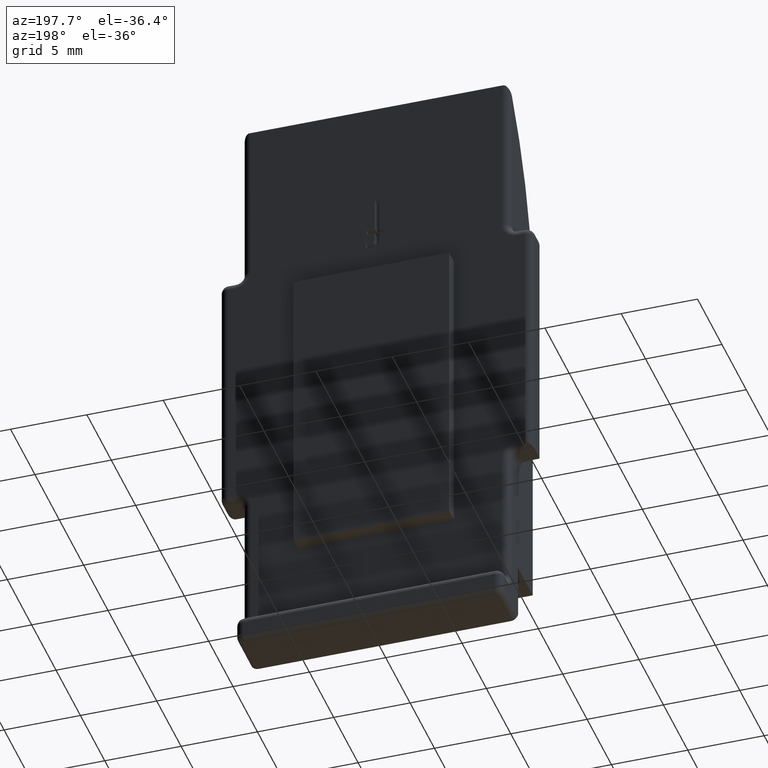
[diagram: clean part render]
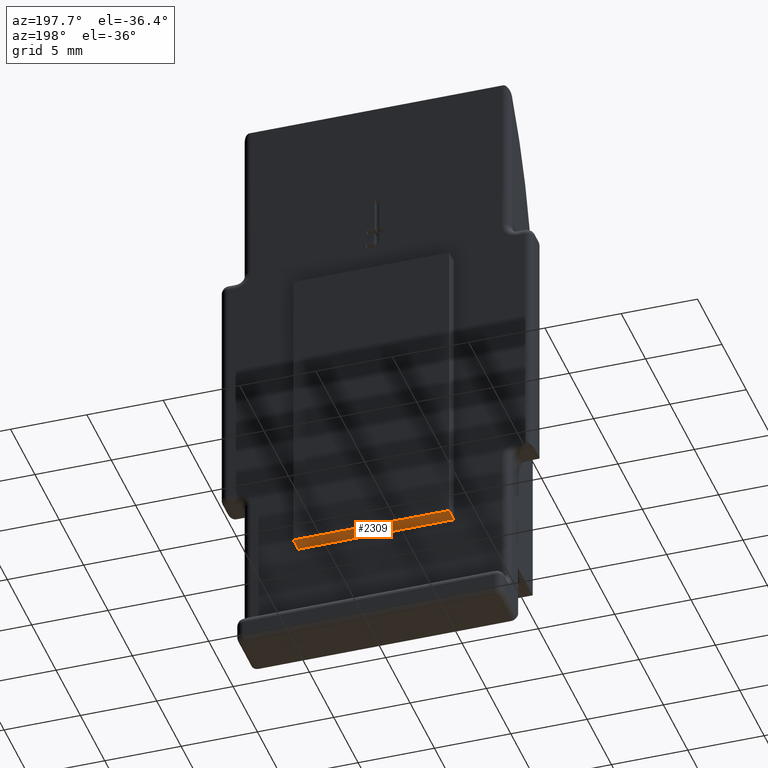
[diagram: same view with one face highlighted and labeled with its STEP entity id]
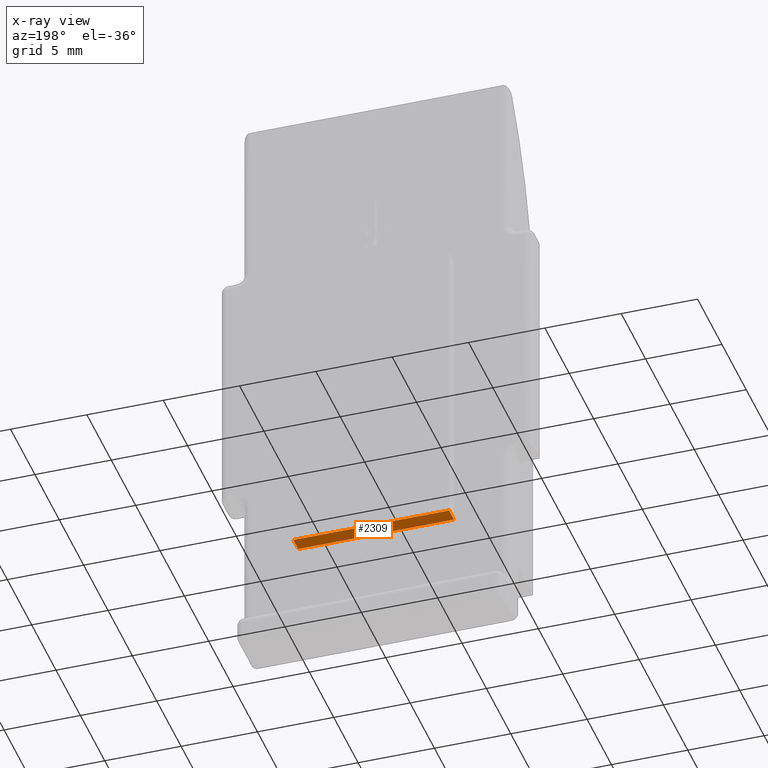
[diagram: x-ray of the same camera — body ghosted, the highlighted face saturated]
A machine part, auxiliary view. The second image highlights one B-rep face of the part: STEP entity #2309.
The next image is the same camera in x-ray: the body ghosted, the highlighted face saturated — about 0% of this face is hidden behind the body in this view.
In plain terms, the highlighted planar face has unit normal (0, 0, 1).
Its self-contained STEP definition (entity closure, byte-faithful):
#162 = ORIENTED_EDGE ( 'NONE', *, *, #1906, .F. ) ;
#225 = CARTESIAN_POINT ( 'NONE',  ( 0.0000000000000000000, 10.19999999999999900, 1.000000000000000000 ) ) ;
#245 = EDGE_CURVE ( 'NONE', #1359, #2426, #1503, .T. ) ;
#248 = CARTESIAN_POINT ( 'NONE',  ( 0.0000000000000000000, 10.19999999999999900, 1.000000000000000000 ) ) ;
#362 = VERTEX_POINT ( 'NONE', #248 ) ;
#424 = VECTOR ( 'NONE', #2853, 1000.000000000000000 ) ;
#456 = CARTESIAN_POINT ( 'NONE',  ( 0.0000000000000000000, 10.19999999999999900, 1.000000000000000000 ) ) ;
#459 = LINE ( 'NONE', #225, #424 ) ;
#482 = CARTESIAN_POINT ( 'NONE',  ( 0.0000000000000000000, 0.0000000000000000000, 1.000000000000000000 ) ) ;
#521 = DIRECTION ( 'NONE',  ( -0.0000000000000000000, -0.0000000000000000000, -1.000000000000000000 ) ) ;
#554 = FACE_OUTER_BOUND ( 'NONE', #1049, .T. ) ;
#571 = DIRECTION ( 'NONE',  ( -0.0000000000000000000, -0.0000000000000000000, -1.000000000000000000 ) ) ;
#769 = CARTESIAN_POINT ( 'NONE',  ( 0.0000000000000000000, 0.0000000000000000000, 0.0000000000000000000 ) ) ;
#808 = DIRECTION ( 'NONE',  ( -0.0000000000000000000, 0.0000000000000000000, -1.000000000000000000 ) ) ;
#899 = VERTEX_POINT ( 'NONE', #2080 ) ;
#1009 = DIRECTION ( 'NONE',  ( 1.000000000000000000, 0.0000000000000000000, -0.0000000000000000000 ) ) ;
#1015 = DIRECTION ( 'NONE',  ( 0.0000000000000000000, -1.000000000000000000, 0.0000000000000000000 ) ) ;
#1017 = AXIS2_PLACEMENT_3D ( 'NONE', #1783, #1009, #808 ) ;
#1019 = CARTESIAN_POINT ( 'NONE',  ( 0.0000000000000000000, 10.19999999999999900, 0.0000000000000000000 ) ) ;
#1030 = PLANE ( 'NONE',  #1017 ) ;
#1049 = EDGE_LOOP ( 'NONE', ( #2677, #162, #1113, #2200 ) ) ;
#1113 = ORIENTED_EDGE ( 'NONE', *, *, #2331, .F. ) ;
#1281 = VECTOR ( 'NONE', #521, 1000.000000000000000 ) ;
#1359 = VERTEX_POINT ( 'NONE', #1403 ) ;
#1370 = LINE ( 'NONE', #482, #1281 ) ;
#1378 = VECTOR ( 'NONE', #571, 1000.000000000000000 ) ;
#1383 = VECTOR ( 'NONE', #1015, 1000.000000000000000 ) ;
#1403 = CARTESIAN_POINT ( 'NONE',  ( 0.0000000000000000000, 10.19999999999999900, 0.0000000000000000000 ) ) ;
#1456 = LINE ( 'NONE', #456, #1378 ) ;
#1503 = LINE ( 'NONE', #1019, #1383 ) ;
#1783 = CARTESIAN_POINT ( 'NONE',  ( 0.0000000000000000000, 10.19999999999999900, 1.000000000000000000 ) ) ;
#1895 = EDGE_CURVE ( 'NONE', #362, #1359, #1456, .T. ) ;
#1906 = EDGE_CURVE ( 'NONE', #899, #2426, #1370, .T. ) ;
#2080 = CARTESIAN_POINT ( 'NONE',  ( 0.0000000000000000000, 0.0000000000000000000, 1.000000000000000000 ) ) ;
#2200 = ORIENTED_EDGE ( 'NONE', *, *, #1895, .T. ) ;
#2309 = ADVANCED_FACE ( 'NONE', ( #554 ), #1030, .F. ) ;
#2331 = EDGE_CURVE ( 'NONE', #362, #899, #459, .T. ) ;
#2426 = VERTEX_POINT ( 'NONE', #769 ) ;
#2677 = ORIENTED_EDGE ( 'NONE', *, *, #245, .T. ) ;
#2853 = DIRECTION ( 'NONE',  ( 0.0000000000000000000, -1.000000000000000000, 0.0000000000000000000 ) ) ;